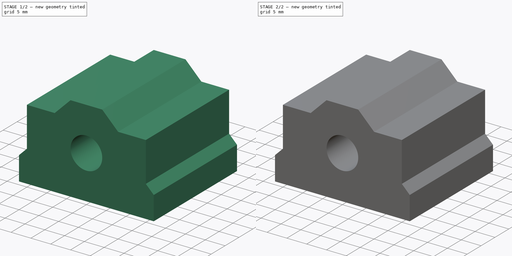
[diagram: build sequence overview — one tinted view per stage of 2, left to right]
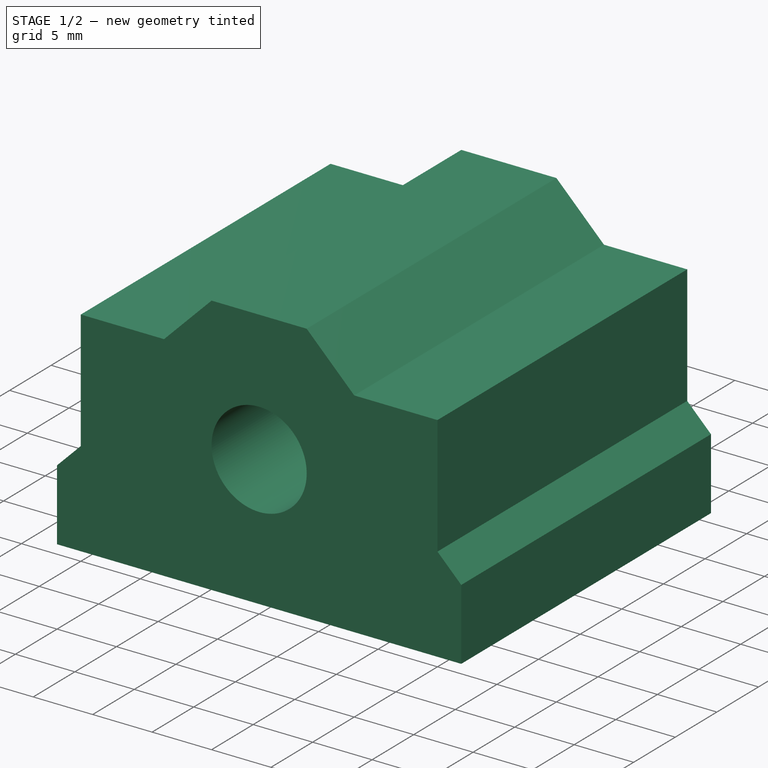
[diagram: stage 1 of 2 — iso view after this stage's code; geometry added in this stage tinted green]
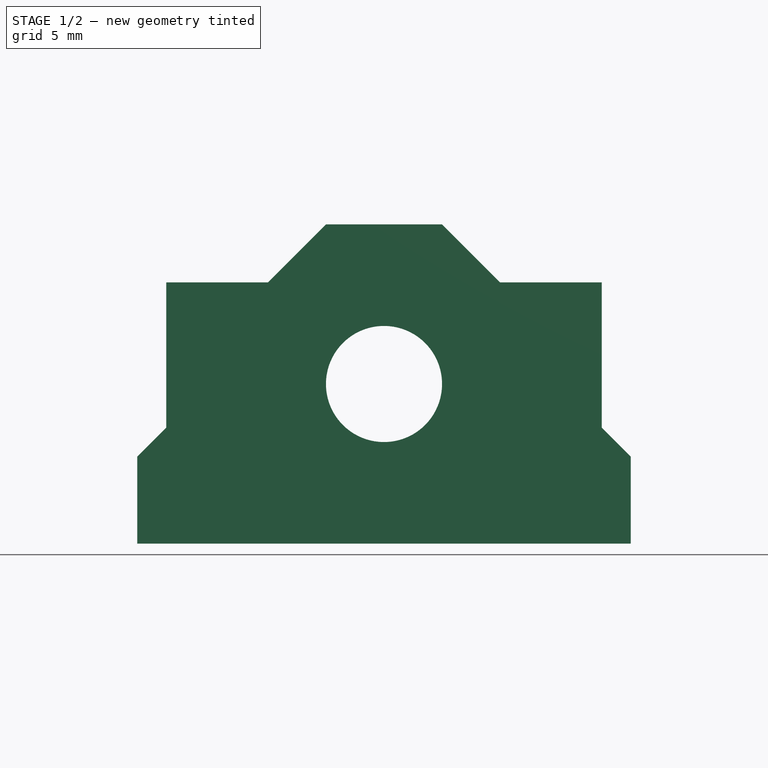
[diagram: stage 1 of 2 — front view after this stage's code; geometry added in this stage tinted green]
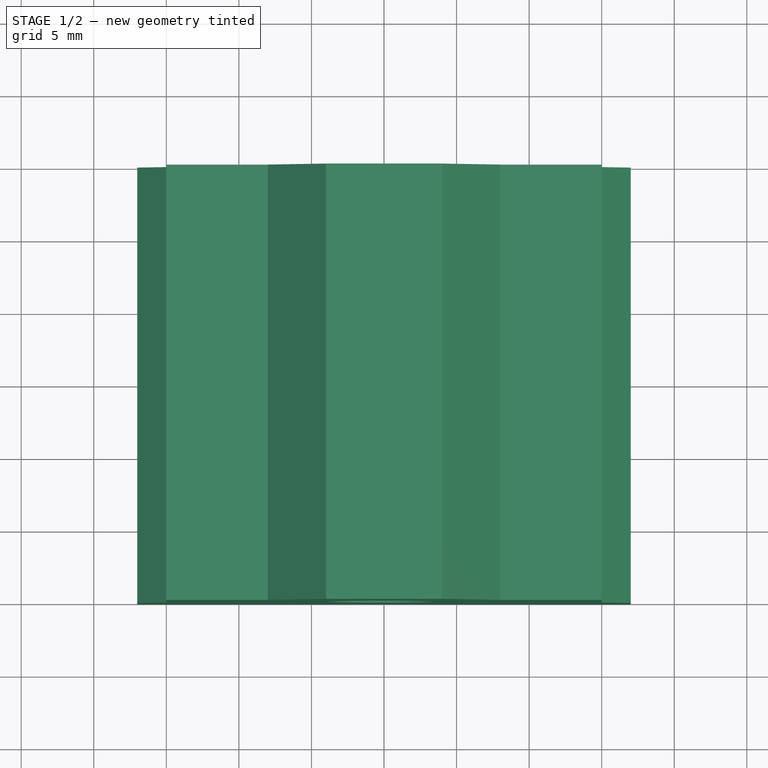
[diagram: stage 1 of 2 — top view after this stage's code; geometry added in this stage tinted green]
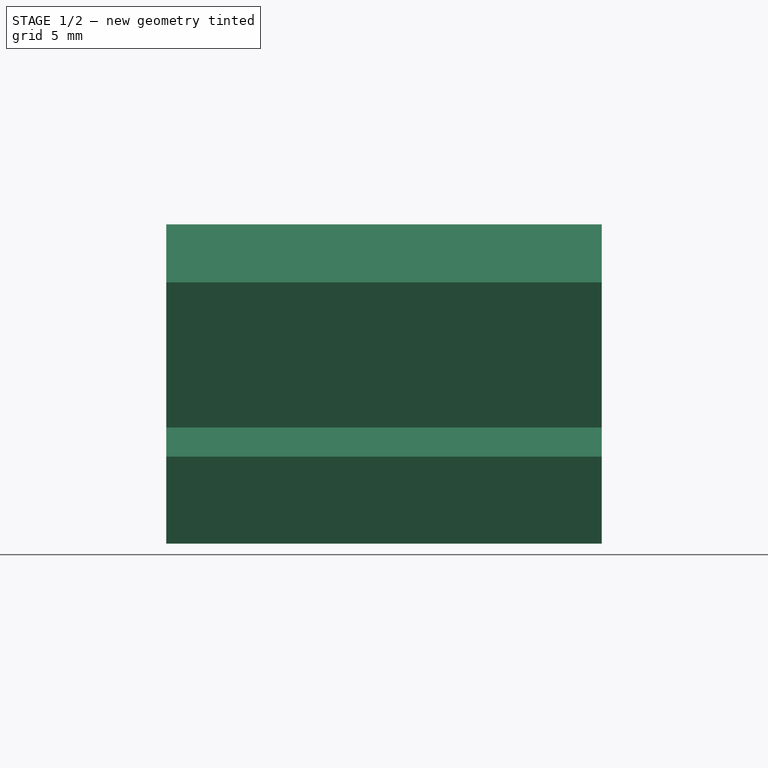
[diagram: stage 1 of 2 — right view after this stage's code; geometry added in this stage tinted green]
FCSTD DOCUMENT  (FreeCAD 0.18R14555 (Git shallow))
Label: linear-bearing-box
License: All rights reserved
LicenseURL: http://en.wikipedia.org/wiki/All_rights_reserved
objects: Sketcher::SketchObject×2, PartDesign::Pad×1, PartDesign::Pocket×1, PartDesign::Body×1
note: 7 computed .brp shape members not serialized (recipe doc carries the construction recipe); baked Part::Feature solids carry a one-line shape summary decoded from their .brp

FEATURE [Sketcher::SketchObject] Sketch
  MapMode = 5
  Placement = pos=(0,0,0) rot=(1,0,0;1.5708rad)
  Support = -> [XZ_Plane]
  sketch-geometry (18):
    g0: LineSegment StartX=-17 StartY=-11 StartZ=0 EndX=-17 EndY=-5 EndZ=0
    g1: LineSegment StartX=-17 StartY=-5 StartZ=0 EndX=-15 EndY=-3 EndZ=0
    g2: LineSegment StartX=-15 StartY=-3 StartZ=0 EndX=-15 EndY=7 EndZ=0
    g3: LineSegment StartX=-15 StartY=7 StartZ=0 EndX=-8 EndY=7 EndZ=0
    g4: LineSegment StartX=-8 StartY=7 StartZ=0 EndX=-4 EndY=11 EndZ=0
    g5: LineSegment StartX=-4 StartY=11 StartZ=0 EndX=4 EndY=11 EndZ=0
    g6: LineSegment StartX=4 StartY=11 StartZ=0 EndX=8 EndY=7 EndZ=0
    g7: LineSegment StartX=8 StartY=7 StartZ=0 EndX=15 EndY=7 EndZ=0
    g8: LineSegment StartX=15 StartY=7 StartZ=0 EndX=15 EndY=-3 EndZ=0
    g9: LineSegment StartX=15 StartY=-3 StartZ=0 EndX=17 EndY=-5 EndZ=0
    g10: LineSegment StartX=17 StartY=-5 StartZ=0 EndX=17 EndY=-11 EndZ=0
    g11: LineSegment StartX=17 StartY=-11 StartZ=0 EndX=-17 EndY=-11 EndZ=0
    g12: LineSegment [constr] StartX=-17 StartY=-5 StartZ=0 EndX=17 EndY=-5 EndZ=0
    g13: LineSegment [constr] StartX=15 StartY=-3 StartZ=0 EndX=-15 EndY=-3 EndZ=0
    g14: LineSegment [constr] StartX=-8 StartY=7 StartZ=0 EndX=8 EndY=7 EndZ=0
    g15: Circle CenterX=0 CenterY=0 CenterZ=0 NormalX=0 NormalY=0 NormalZ=1 AngleXU=0 Radius=4
    g16: LineSegment [constr] StartX=0 StartY=0 StartZ=0 EndX=-4 EndY=11 EndZ=0
    g17: LineSegment [constr] StartX=0 StartY=0 StartZ=0 EndX=4 EndY=11 EndZ=0
  constraints (48):
    c: Vertical(g0)
    c: Coincident(g0,g1)
    c: Coincident(g1,g2)
    c: Vertical(g2)
    c: Coincident(g2,g3)
    c: Horizontal(g3)
    c: Coincident(g3,g4)
    c: Coincident(g4,g5)
    c: Horizontal(g5)
    c: Coincident(g5,g6)
    c: Coincident(g6,g7)
    c: Horizontal(g7)
    c: Coincident(g7,g8)
    c: Vertical(g8)
    c: Coincident(g8,g9)
    c: Coincident(g9,g10)
    c: Vertical(g10)
    c: Coincident(g10,g11)
    c: Coincident(g11,g0)
    c: Horizontal(g11)
    c: Coincident(g12,g0)
    c: Coincident(g12,g9)
    c: Horizontal(g12)
    c: Coincident(g13,g8)
    c: Coincident(g13,g1)
    c: Horizontal(g13)
    c: Coincident(g14,g3)
    c: Coincident(g14,g6)
    c: Horizontal(g14)
    c: Equal(g3,g7)
    c: Equal(g4,g6)
    c: Equal(g9,g1)
    c: DistanceX(g11,g11) = 34
    c: DistanceY(g0,g0) = 6
    c: Angle(g0,g1) = 2.35619
    c: DistanceY(g0,g1) = 8
    c: DistanceY(g0,g2) = 18
    c: Angle(g4,g3) = 2.35619
    c: DistanceX(g3,g6) = 16
    c: DistanceY(g0,g4) = 22
    c: Coincident(g16,g15)
    c: Coincident(g16,g4)
    c: Coincident(g17,g15)
    c: Coincident(g17,g5)
    c: Equal(g16,g17)
    c: DistanceY(g15,g5) = 11
    c: Radius(g15) = 4
    c: Coincident(g15,g-1)
FEATURE [PartDesign::Pad] Pad
  Length = 30
  Length2 = 100
  Placement = pos=(0,0,0) rot=(1,0,0;1.5708rad)
  Profile = -> Sketch
  Type = 0
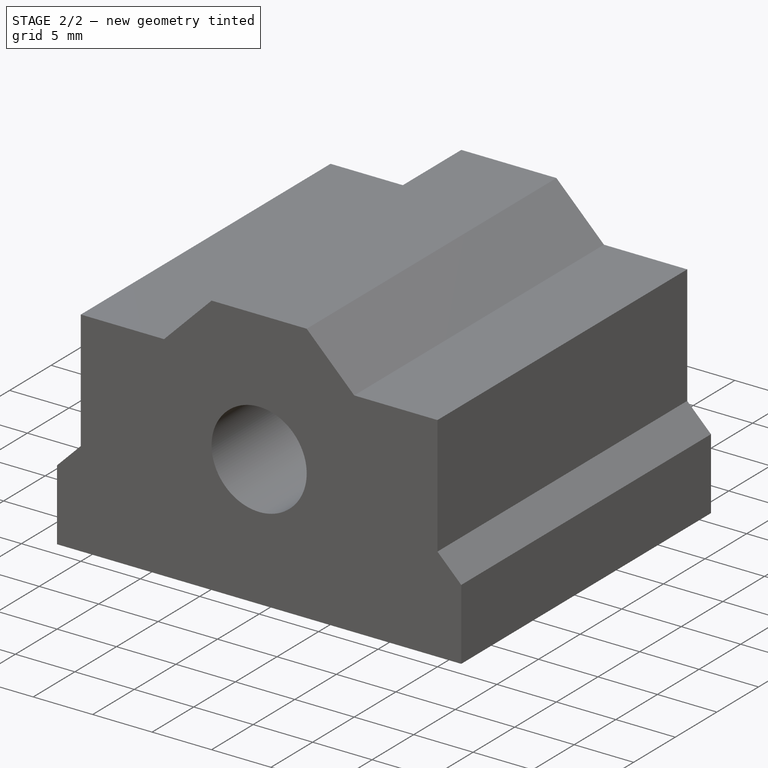
[diagram: stage 2 of 2 — iso view after this stage's code; geometry added in this stage tinted green]
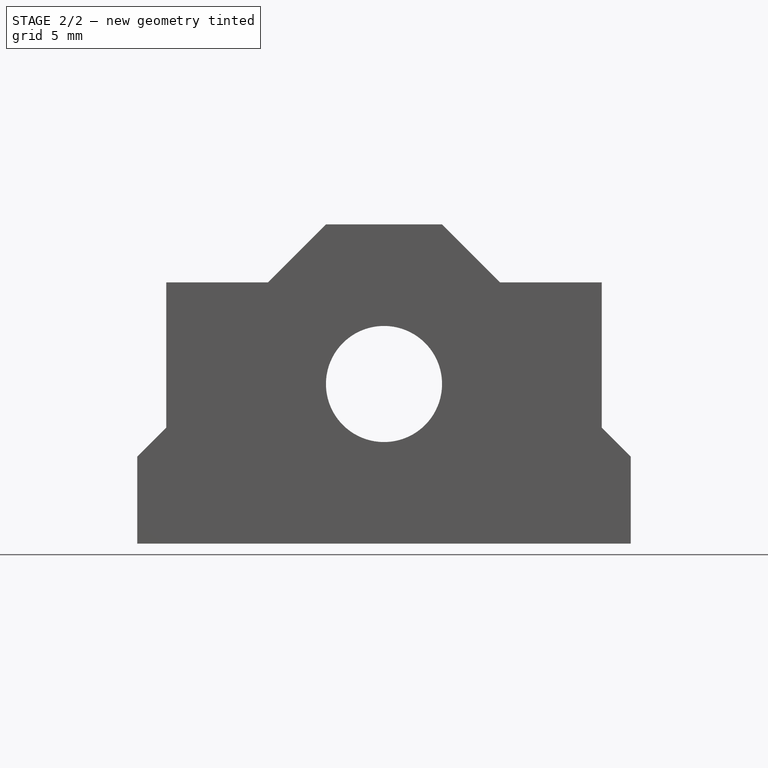
[diagram: stage 2 of 2 — front view after this stage's code; geometry added in this stage tinted green]
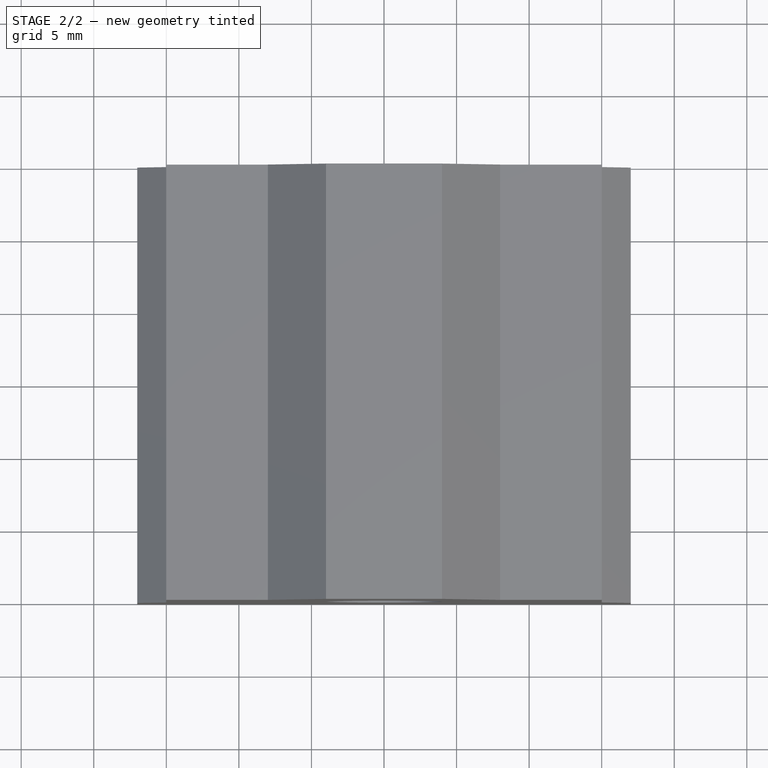
[diagram: stage 2 of 2 — top view after this stage's code; geometry added in this stage tinted green]
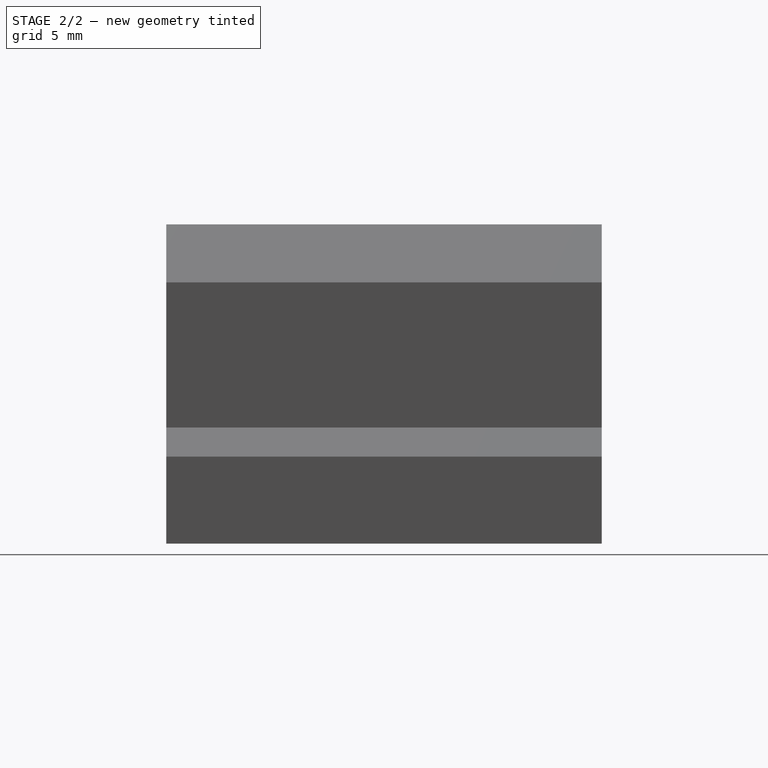
[diagram: stage 2 of 2 — right view after this stage's code; geometry added in this stage tinted green]
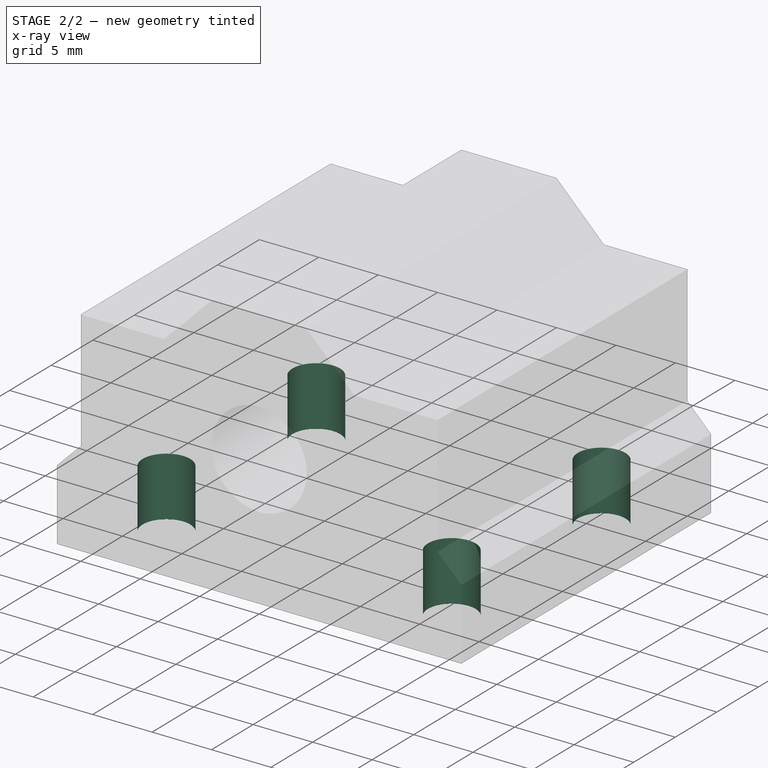
[diagram: stage 2 of 2 — x-ray composite at the iso view; earlier geometry ghosted, this stage's added geometry solid]
FEATURE [Sketcher::SketchObject] Sketch001
  ExternalGeometry = -> [Pad]
  MapMode = 5
  Placement = pos=(0,-7.3e-15,-11) rot=(1,0,0;3.14159rad)
  Support = -> [Pad]
  sketch-geometry (11):
    g0: LineSegment [constr] StartX=-12 StartY=24 StartZ=0 EndX=12 EndY=24 EndZ=0
    g1: LineSegment [constr] StartX=12 StartY=24 StartZ=0 EndX=12 EndY=6 EndZ=0
    g2: LineSegment [constr] StartX=12 StartY=6 StartZ=0 EndX=-12 EndY=6 EndZ=0
    g3: LineSegment [constr] StartX=-12 StartY=6 StartZ=0 EndX=-12 EndY=24 EndZ=0
    g4: LineSegment [constr] StartX=-12 StartY=24 StartZ=0 EndX=-17 EndY=30 EndZ=0
    g5: LineSegment [constr] StartX=-12 StartY=6 StartZ=0 EndX=-17 EndY=0 EndZ=0
    g6: LineSegment [constr] StartX=12 StartY=24 StartZ=0 EndX=17 EndY=30 EndZ=0
    g7: Circle CenterX=-12 CenterY=24 CenterZ=0 NormalX=0 NormalY=0 NormalZ=1 AngleXU=0 Radius=2
    g8: Circle CenterX=12 CenterY=24 CenterZ=0 NormalX=0 NormalY=0 NormalZ=1 AngleXU=0 Radius=2
    g9: Circle CenterX=-12 CenterY=6 CenterZ=0 NormalX=0 NormalY=0 NormalZ=1 AngleXU=0 Radius=2
    g10: Circle CenterX=12 CenterY=6 CenterZ=0 NormalX=0 NormalY=0 NormalZ=1 AngleXU=0 Radius=2
  constraints (26):
    c: Coincident(g0,g1)
    c: Coincident(g1,g2)
    c: Coincident(g2,g3)
    c: Coincident(g3,g0)
    c: Horizontal(g0)
    c: Horizontal(g2)
    c: Vertical(g1)
    c: Vertical(g3)
    c: Coincident(g4,g0)
    c: Coincident(g4,g-3)
    c: Coincident(g5,g2)
    c: Coincident(g5,g-4)
    c: Coincident(g6,g-3)
    c: Equal(g4,g6)
    c: Equal(g6,g5)
    c: DistanceX(g0,g0) = 24
    c: DistanceY(g3,g3) = 18
    c: Coincident(g6,g0)
    c: Coincident(g7,g0)
    c: Coincident(g8,g0)
    c: Coincident(g9,g2)
    c: Coincident(g10,g1)
    c: Equal(g9,g10)
    c: Equal(g10,g8)
    c: Equal(g8,g7)
    c: Radius(g7) = 2
FEATURE [PartDesign::Pocket] Pocket
  BaseFeature = -> Pad
  Length = 5
  Length2 = 100
  Placement = pos=(0,0,0) rot=(1,0,0;1.5708rad)
  Profile = -> Sketch001
  Type = 0
FEATURE [PartDesign::Body] Body
  Group = -> [Sketch,Pad,Sketch001,Pocket]
  Origin = -> Origin
  Tip = -> Pocket
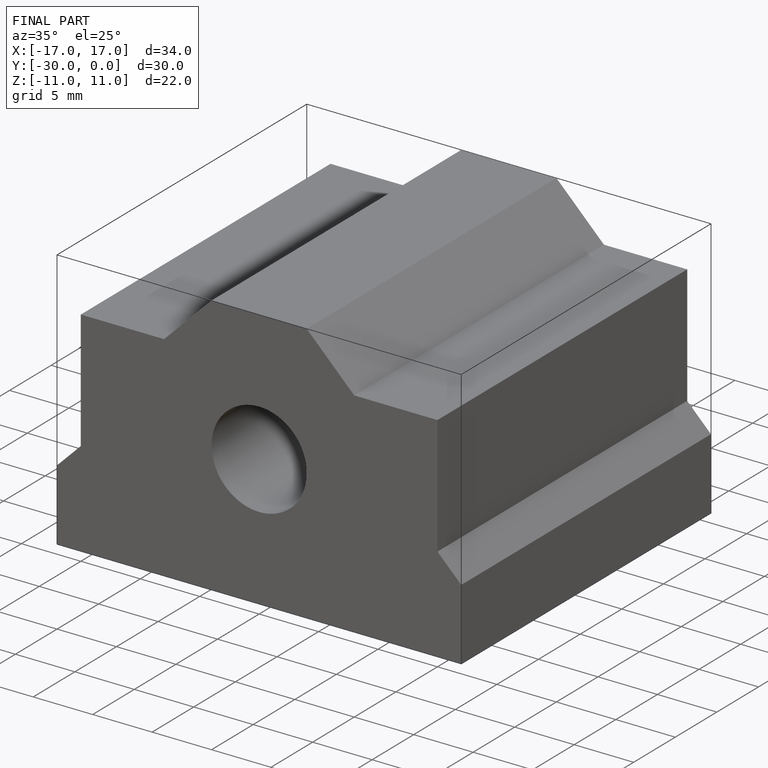
[diagram: finished part — iso view with bounding-box wireframe]
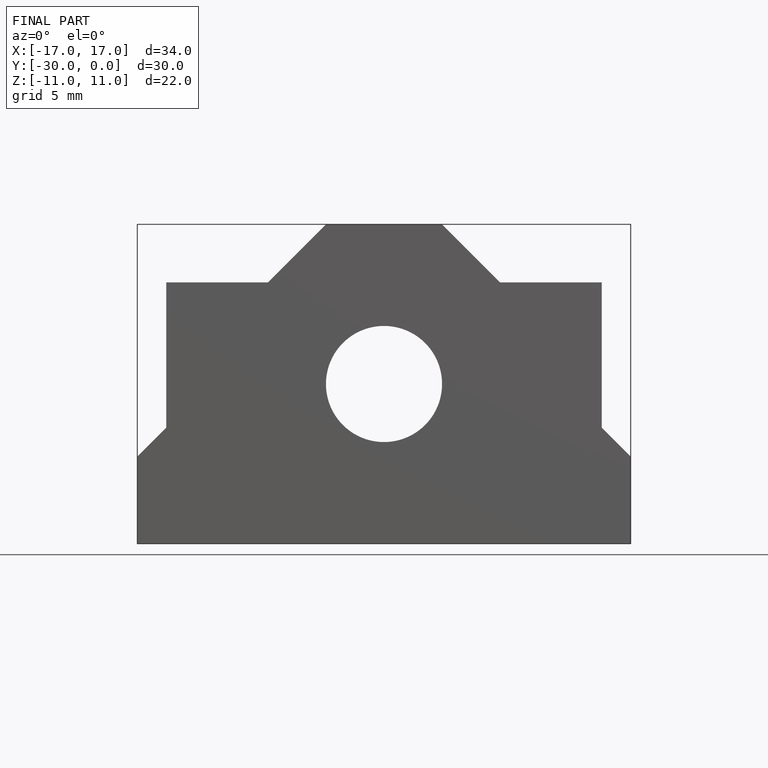
[diagram: finished part — front view with bounding-box wireframe]
